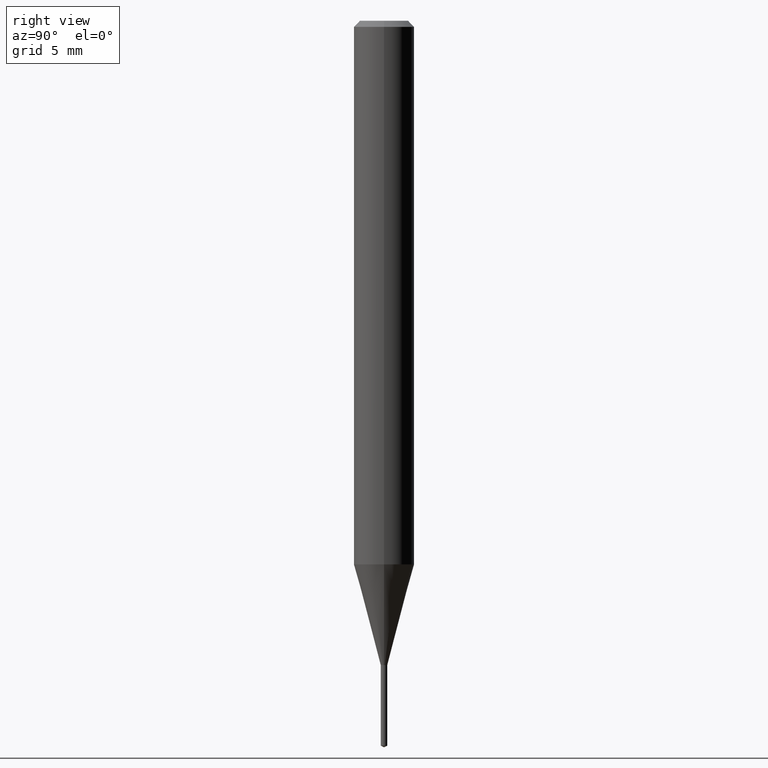
[diagram: clean part render]
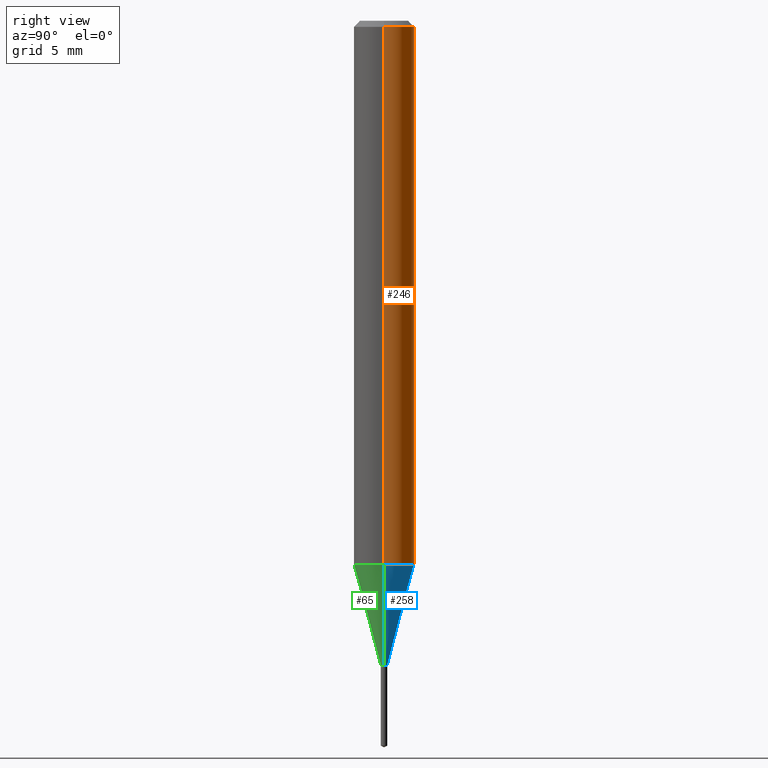
[diagram: same view with three faces highlighted in distinct colors, each labeled with its STEP entity id]
A machine part, right view with three faces highlighted in distinct colors.
Their STEP definitions:

[orange] entity #246 — the highlighted cylindrical surface (edge-blend (fillet) strip) has radius 1.5875 mm, axis along (-0, 0, 1).
#7 = DIRECTION ( 'NONE',  ( 1.000000000000000000, -6.982962677686262766E-15, 0.000000000000000000 ) ) ;
#12 = DIRECTION ( 'NONE',  ( 1.000000000000000000, -6.982962677686266711E-15, 0.000000000000000000 ) ) ;
#13 = LINE ( 'NONE', #477, #33 ) ;
#21 = ORIENTED_EDGE ( 'NONE', *, *, #136, .T. ) ;
#33 = VECTOR ( 'NONE', #357, 39.37007874015748143 ) ;
#57 = CIRCLE ( 'NONE', #391, 0.06250000000000000000 ) ;
#63 = CYLINDRICAL_SURFACE ( 'NONE', #405, 0.06250000000000006939 ) ;
#74 = ORIENTED_EDGE ( 'NONE', *, *, #185, .F. ) ;
#96 = CARTESIAN_POINT ( 'NONE',  ( -0.06250000000000006939, 4.440892098500631092E-16, -3.074334431409319267E-30 ) ) ;
#100 = FACE_OUTER_BOUND ( 'NONE', #179, .T. ) ;
#101 = ORIENTED_EDGE ( 'NONE', *, *, #361, .T. ) ;
#136 = EDGE_CURVE ( 'NONE', #183, #350, #148, .T. ) ;
#148 = CIRCLE ( 'NONE', #352, 0.06250000000000013878 ) ;
#154 = CARTESIAN_POINT ( 'NONE',  ( 3.056836007731442729E-31, -4.364351673553962300E-17, -0.01250000000000008916 ) ) ;
#167 = DIRECTION ( 'NONE',  ( 1.000000000000000000, -6.982962677686266711E-15, 4.876176775795935793E-29 ) ) ;
#173 = CARTESIAN_POINT ( 'NONE',  ( -0.06250000000000000000, -1.537043932328202372E-15, -0.01250000000000008916 ) ) ;
#177 = CARTESIAN_POINT ( 'NONE',  ( 0.06250000000000000000, -4.800786840909313294E-16, -0.01250000000000008916 ) ) ;
#179 = EDGE_LOOP ( 'NONE', ( #21, #101, #74, #248 ) ) ;
#183 = VERTEX_POINT ( 'NONE', #420 ) ;
#185 = EDGE_CURVE ( 'NONE', #319, #330, #57, .T. ) ;
#205 = CARTESIAN_POINT ( 'NONE',  ( -0.06250000000000013878, -3.474533557770928981E-15, -1.122338167478040827 ) ) ;
#244 = DIRECTION ( 'NONE',  ( -2.445468806185136877E-29, 3.491481338843145188E-15, 1.000000000000000000 ) ) ;
#246 = ADVANCED_FACE ( 'NONE', ( #100 ), #63, .T. ) ;
#248 = ORIENTED_EDGE ( 'NONE', *, *, #343, .F. ) ;
#291 = VECTOR ( 'NONE', #244, 39.37007874015748143 ) ;
#304 = CARTESIAN_POINT ( 'NONE',  ( 2.744642978558538366E-29, -3.918622767620992781E-15, -1.122338167478040827 ) ) ;
#319 = VERTEX_POINT ( 'NONE', #177 ) ;
#320 = CARTESIAN_POINT ( 'NONE',  ( 0.000000000000000000, 0.000000000000000000, 0.000000000000000000 ) ) ;
#330 = VERTEX_POINT ( 'NONE', #173 ) ;
#343 = EDGE_CURVE ( 'NONE', #183, #319, #13, .T. ) ;
#350 = VERTEX_POINT ( 'NONE', #205 ) ;
#352 = AXIS2_PLACEMENT_3D ( 'NONE', #304, #385, #7 ) ;
#354 = LINE ( 'NONE', #96, #291 ) ;
#357 = DIRECTION ( 'NONE',  ( -2.445468806185136877E-29, 3.491481338843145188E-15, 1.000000000000000000 ) ) ;
#361 = EDGE_CURVE ( 'NONE', #350, #330, #354, .T. ) ;
#385 = DIRECTION ( 'NONE',  ( -2.445468806185136597E-29, 3.491481338843145583E-15, 1.000000000000000000 ) ) ;
#391 = AXIS2_PLACEMENT_3D ( 'NONE', #154, #452, #12 ) ;
#405 = AXIS2_PLACEMENT_3D ( 'NONE', #320, #434, #167 ) ;
#420 = CARTESIAN_POINT ( 'NONE',  ( 0.06250000000000013878, -4.355057934976385239E-15, -1.122338167478040827 ) ) ;
#434 = DIRECTION ( 'NONE',  ( -2.445468806185136597E-29, 3.491481338843145583E-15, 1.000000000000000000 ) ) ;
#452 = DIRECTION ( 'NONE',  ( -2.445468806185136597E-29, 3.491481338843145583E-15, 1.000000000000000000 ) ) ;
#477 = CARTESIAN_POINT ( 'NONE',  ( 0.06250000000000006939, -4.364351673553921624E-16, 3.047610484872463374E-30 ) ) ;

[blue] entity #258 — the highlighted conical surface has half-angle 15 deg.
#7 = DIRECTION ( 'NONE',  ( 1.000000000000000000, -6.982962677686262766E-15, 0.000000000000000000 ) ) ;
#11 = EDGE_CURVE ( 'NONE', #91, #272, #414, .T. ) ;
#20 = EDGE_CURVE ( 'NONE', #272, #350, #485, .T. ) ;
#43 = CARTESIAN_POINT ( 'NONE',  ( 0.006750000000000003393, -4.692201771271302674E-15, -1.330400000000000027 ) ) ;
#53 = ORIENTED_EDGE ( 'NONE', *, *, #192, .F. ) ;
#68 = ORIENTED_EDGE ( 'NONE', *, *, #11, .T. ) ;
#87 = DIRECTION ( 'NONE',  ( 0.2588190451025279559, 1.565188264969568522E-15, 0.9659258262890662028 ) ) ;
#91 = VERTEX_POINT ( 'NONE', #43 ) ;
#94 = CARTESIAN_POINT ( 'NONE',  ( 3.253451699748706005E-29, -4.645066773196920500E-15, -1.330400000000000027 ) ) ;
#103 = DIRECTION ( 'NONE',  ( 1.000000000000000000, -6.982962677686221745E-15, 0.000000000000000000 ) ) ;
#108 = ORIENTED_EDGE ( 'NONE', *, *, #136, .F. ) ;
#129 = FACE_OUTER_BOUND ( 'NONE', #435, .T. ) ;
#133 = DIRECTION ( 'NONE',  ( -2.445468806185136597E-29, 3.491481338843145583E-15, 1.000000000000000000 ) ) ;
#136 = EDGE_CURVE ( 'NONE', #183, #350, #148, .T. ) ;
#148 = CIRCLE ( 'NONE', #352, 0.06250000000000013878 ) ;
#152 = DIRECTION ( 'NONE',  ( -2.445468806185136597E-29, 3.491481338843145583E-15, 1.000000000000000000 ) ) ;
#183 = VERTEX_POINT ( 'NONE', #420 ) ;
#186 = CARTESIAN_POINT ( 'NONE',  ( 3.253451699748706005E-29, -4.645066773196920500E-15, -1.330400000000000027 ) ) ;
#192 = EDGE_CURVE ( 'NONE', #91, #183, #342, .T. ) ;
#205 = CARTESIAN_POINT ( 'NONE',  ( -0.06250000000000013878, -3.474533557770928981E-15, -1.122338167478040827 ) ) ;
#225 = CONICAL_SURFACE ( 'NONE', #276, 0.006750000000000003393, 0.2617993877991569573 ) ;
#243 = VECTOR ( 'NONE', #404, 39.37007874015748854 ) ;
#258 = ADVANCED_FACE ( 'NONE', ( #129 ), #225, .T. ) ;
#272 = VERTEX_POINT ( 'NONE', #318 ) ;
#276 = AXIS2_PLACEMENT_3D ( 'NONE', #94, #133, #103 ) ;
#301 = DIRECTION ( 'NONE',  ( 1.000000000000000000, -6.982962677686221745E-15, 0.000000000000000000 ) ) ;
#304 = CARTESIAN_POINT ( 'NONE',  ( 2.744642978558538366E-29, -3.918622767620992781E-15, -1.122338167478040827 ) ) ;
#313 = ORIENTED_EDGE ( 'NONE', *, *, #20, .T. ) ;
#318 = CARTESIAN_POINT ( 'NONE',  ( -0.006750000000000003393, -4.499518235112449476E-15, -1.330400000000000027 ) ) ;
#334 = AXIS2_PLACEMENT_3D ( 'NONE', #186, #152, #301 ) ;
#342 = LINE ( 'NONE', #465, #454 ) ;
#350 = VERTEX_POINT ( 'NONE', #205 ) ;
#352 = AXIS2_PLACEMENT_3D ( 'NONE', #304, #385, #7 ) ;
#385 = DIRECTION ( 'NONE',  ( -2.445468806185136597E-29, 3.491481338843145583E-15, 1.000000000000000000 ) ) ;
#404 = DIRECTION ( 'NONE',  ( -0.2588190451025279559, 5.211531920934590485E-15, 0.9659258262890662028 ) ) ;
#414 = CIRCLE ( 'NONE', #334, 0.006750000000000003393 ) ;
#420 = CARTESIAN_POINT ( 'NONE',  ( 0.06250000000000013878, -4.355057934976385239E-15, -1.122338167478040827 ) ) ;
#435 = EDGE_LOOP ( 'NONE', ( #68, #313, #108, #53 ) ) ;
#442 = CARTESIAN_POINT ( 'NONE',  ( -0.006750000000000003393, -4.597105138533114287E-15, -1.330400000000000027 ) ) ;
#454 = VECTOR ( 'NONE', #87, 39.37007874015748854 ) ;
#465 = CARTESIAN_POINT ( 'NONE',  ( 0.006750000000000003393, -4.692201771271302674E-15, -1.330400000000000027 ) ) ;
#485 = LINE ( 'NONE', #442, #243 ) ;

[green] entity #65 — the highlighted conical surface has half-angle 15 deg.
#5 = DIRECTION ( 'NONE',  ( 1.000000000000000000, -6.982962677686221745E-15, 0.000000000000000000 ) ) ;
#16 = DIRECTION ( 'NONE',  ( -2.445468806185136597E-29, 3.491481338843145583E-15, 1.000000000000000000 ) ) ;
#20 = EDGE_CURVE ( 'NONE', #272, #350, #485, .T. ) ;
#43 = CARTESIAN_POINT ( 'NONE',  ( 0.006750000000000003393, -4.692201771271302674E-15, -1.330400000000000027 ) ) ;
#47 = CIRCLE ( 'NONE', #106, 0.06250000000000013878 ) ;
#65 = ADVANCED_FACE ( 'NONE', ( #263 ), #217, .T. ) ;
#75 = ORIENTED_EDGE ( 'NONE', *, *, #20, .F. ) ;
#79 = AXIS2_PLACEMENT_3D ( 'NONE', #296, #444, #5 ) ;
#87 = DIRECTION ( 'NONE',  ( 0.2588190451025279559, 1.565188264969568522E-15, 0.9659258262890662028 ) ) ;
#91 = VERTEX_POINT ( 'NONE', #43 ) ;
#98 = AXIS2_PLACEMENT_3D ( 'NONE', #428, #202, #475 ) ;
#105 = ORIENTED_EDGE ( 'NONE', *, *, #353, .T. ) ;
#106 = AXIS2_PLACEMENT_3D ( 'NONE', #316, #16, #387 ) ;
#183 = VERTEX_POINT ( 'NONE', #420 ) ;
#192 = EDGE_CURVE ( 'NONE', #91, #183, #342, .T. ) ;
#202 = DIRECTION ( 'NONE',  ( -2.445468806185136597E-29, 3.491481338843145583E-15, 1.000000000000000000 ) ) ;
#205 = CARTESIAN_POINT ( 'NONE',  ( -0.06250000000000013878, -3.474533557770928981E-15, -1.122338167478040827 ) ) ;
#217 = CONICAL_SURFACE ( 'NONE', #79, 0.006750000000000003393, 0.2617993877991569573 ) ;
#243 = VECTOR ( 'NONE', #404, 39.37007874015748854 ) ;
#255 = EDGE_CURVE ( 'NONE', #350, #183, #47, .T. ) ;
#263 = FACE_OUTER_BOUND ( 'NONE', #300, .T. ) ;
#272 = VERTEX_POINT ( 'NONE', #318 ) ;
#296 = CARTESIAN_POINT ( 'NONE',  ( 3.253451699748706005E-29, -4.645066773196920500E-15, -1.330400000000000027 ) ) ;
#300 = EDGE_LOOP ( 'NONE', ( #75, #105, #460, #333 ) ) ;
#306 = CIRCLE ( 'NONE', #98, 0.006750000000000003393 ) ;
#316 = CARTESIAN_POINT ( 'NONE',  ( 2.744642978558538366E-29, -3.918622767620992781E-15, -1.122338167478040827 ) ) ;
#318 = CARTESIAN_POINT ( 'NONE',  ( -0.006750000000000003393, -4.499518235112449476E-15, -1.330400000000000027 ) ) ;
#333 = ORIENTED_EDGE ( 'NONE', *, *, #255, .F. ) ;
#342 = LINE ( 'NONE', #465, #454 ) ;
#350 = VERTEX_POINT ( 'NONE', #205 ) ;
#353 = EDGE_CURVE ( 'NONE', #272, #91, #306, .T. ) ;
#387 = DIRECTION ( 'NONE',  ( 1.000000000000000000, -6.982962677686262766E-15, 0.000000000000000000 ) ) ;
#404 = DIRECTION ( 'NONE',  ( -0.2588190451025279559, 5.211531920934590485E-15, 0.9659258262890662028 ) ) ;
#420 = CARTESIAN_POINT ( 'NONE',  ( 0.06250000000000013878, -4.355057934976385239E-15, -1.122338167478040827 ) ) ;
#428 = CARTESIAN_POINT ( 'NONE',  ( 3.253451699748706005E-29, -4.645066773196920500E-15, -1.330400000000000027 ) ) ;
#442 = CARTESIAN_POINT ( 'NONE',  ( -0.006750000000000003393, -4.597105138533114287E-15, -1.330400000000000027 ) ) ;
#444 = DIRECTION ( 'NONE',  ( -2.445468806185136597E-29, 3.491481338843145583E-15, 1.000000000000000000 ) ) ;
#454 = VECTOR ( 'NONE', #87, 39.37007874015748854 ) ;
#460 = ORIENTED_EDGE ( 'NONE', *, *, #192, .T. ) ;
#465 = CARTESIAN_POINT ( 'NONE',  ( 0.006750000000000003393, -4.692201771271302674E-15, -1.330400000000000027 ) ) ;
#475 = DIRECTION ( 'NONE',  ( 1.000000000000000000, -6.982962677686221745E-15, 0.000000000000000000 ) ) ;
#485 = LINE ( 'NONE', #442, #243 ) ;